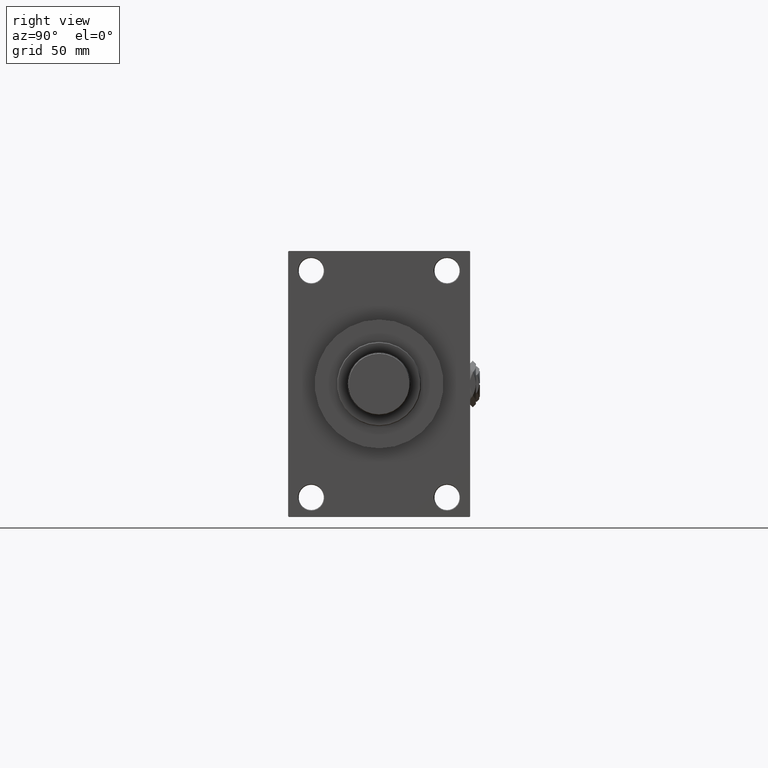
[diagram: clean part render]
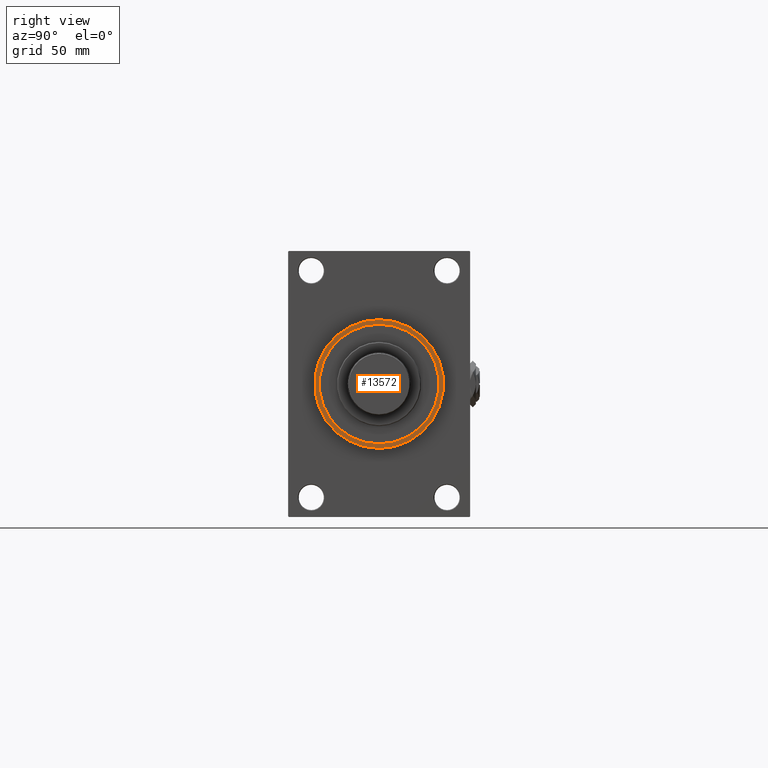
[diagram: same view with one face highlighted and labeled with its STEP entity id]
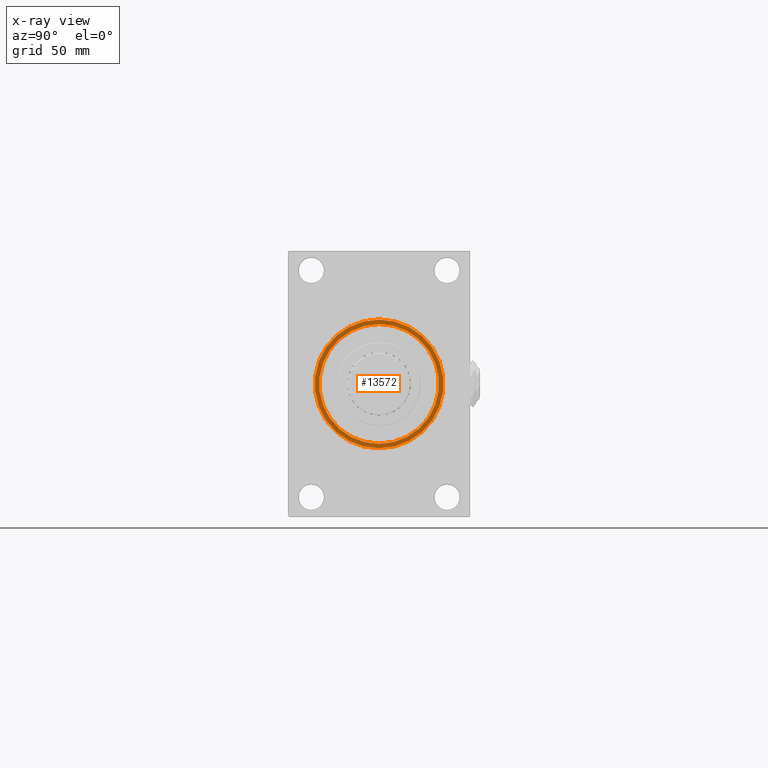
[diagram: x-ray of the same camera — body ghosted, the highlighted face saturated]
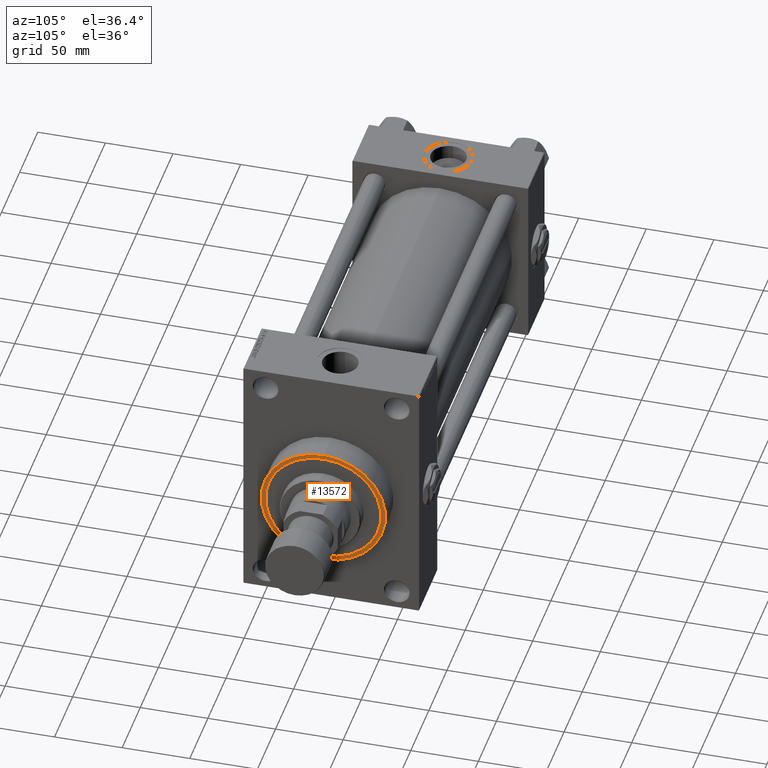
[diagram: same view with one face highlighted and labeled with its STEP entity id]
A machine part, right view. The second image highlights one B-rep face of the part: STEP entity #13572.
The next image is the same camera in x-ray: the body ghosted, the highlighted face saturated — about 0% of this face is hidden behind the body in this view.
A second angle (auxiliary view) of the same face is appended — the face is thin or edge-on in the first view.
In plain terms, the highlighted planar face has unit normal (1, 0, 0).
Its self-contained STEP definition (entity closure, byte-faithful):
#1721 = EDGE_CURVE ( 'NONE', #42578, #42935, #26000, .T. ) ;
#1923 = CIRCLE ( 'NONE', #42495, 42.75000000000000000 ) ;
#1949 = DIRECTION ( 'NONE',  ( 1.000000000000000000, 0.000000000000000000, 0.000000000000000000 ) ) ;
#3385 = EDGE_CURVE ( 'NONE', #42935, #42578, #26915, .T. ) ;
#7844 = EDGE_CURVE ( 'NONE', #21304, #18640, #1923, .T. ) ;
#8143 = AXIS2_PLACEMENT_3D ( 'NONE', #44148, #1949, #9306 ) ;
#8446 = DIRECTION ( 'NONE',  ( 0.000000000000000000, 0.000000000000000000, -1.000000000000000000 ) ) ;
#8537 = CARTESIAN_POINT ( 'NONE',  ( 368.0000000000000000, 0.000000000000000000, 0.000000000000000000 ) ) ;
#9306 = DIRECTION ( 'NONE',  ( 0.000000000000000000, 0.000000000000000000, -1.000000000000000000 ) ) ;
#13572 = ADVANCED_FACE ( 'NONE', ( #18440, #48947 ), #37262, .T. ) ;
#14109 = DIRECTION ( 'NONE',  ( 0.000000000000000000, 0.000000000000000000, -1.000000000000000000 ) ) ;
#16841 = ORIENTED_EDGE ( 'NONE', *, *, #7844, .F. ) ;
#17958 = EDGE_CURVE ( 'NONE', #18640, #21304, #23814, .T. ) ;
#18440 = FACE_BOUND ( 'NONE', #23606, .T. ) ;
#18640 = VERTEX_POINT ( 'NONE', #43853 ) ;
#18846 = CARTESIAN_POINT ( 'NONE',  ( 368.0000000000000000, 0.000000000000000000, 46.00000000000000000 ) ) ;
#21304 = VERTEX_POINT ( 'NONE', #49512 ) ;
#23606 = EDGE_LOOP ( 'NONE', ( #16841, #41477 ) ) ;
#23814 = CIRCLE ( 'NONE', #35205, 42.75000000000000000 ) ;
#24140 = DIRECTION ( 'NONE',  ( 0.000000000000000000, 0.000000000000000000, -1.000000000000000000 ) ) ;
#24384 = DIRECTION ( 'NONE',  ( 1.000000000000000000, 0.000000000000000000, 0.000000000000000000 ) ) ;
#24473 = AXIS2_PLACEMENT_3D ( 'NONE', #28201, #24384, #24140 ) ;
#26000 = CIRCLE ( 'NONE', #8143, 46.00000000000000000 ) ;
#26915 = CIRCLE ( 'NONE', #24473, 46.00000000000000000 ) ;
#28201 = CARTESIAN_POINT ( 'NONE',  ( 368.0000000000000000, 0.000000000000000000, 0.000000000000000000 ) ) ;
#31182 = DIRECTION ( 'NONE',  ( 0.000000000000000000, 0.000000000000000000, -1.000000000000000000 ) ) ;
#35205 = AXIS2_PLACEMENT_3D ( 'NONE', #40235, #36409, #8446 ) ;
#36409 = DIRECTION ( 'NONE',  ( 1.000000000000000000, 0.000000000000000000, 0.000000000000000000 ) ) ;
#37013 = DIRECTION ( 'NONE',  ( 1.000000000000000000, 0.000000000000000000, 0.000000000000000000 ) ) ;
#37262 = PLANE ( 'NONE',  #37573 ) ;
#37573 = AXIS2_PLACEMENT_3D ( 'NONE', #40838, #37013, #14109 ) ;
#38292 = CARTESIAN_POINT ( 'NONE',  ( 368.0000000000000000, 5.633375276077824704E-15, -46.00000000000000000 ) ) ;
#39570 = DIRECTION ( 'NONE',  ( 1.000000000000000000, 0.000000000000000000, 0.000000000000000000 ) ) ;
#40235 = CARTESIAN_POINT ( 'NONE',  ( 368.0000000000000000, 0.000000000000000000, 0.000000000000000000 ) ) ;
#40838 = CARTESIAN_POINT ( 'NONE',  ( 368.0000000000000000, 0.000000000000000000, 0.000000000000000000 ) ) ;
#41138 = ORIENTED_EDGE ( 'NONE', *, *, #1721, .T. ) ;
#41477 = ORIENTED_EDGE ( 'NONE', *, *, #17958, .F. ) ;
#42495 = AXIS2_PLACEMENT_3D ( 'NONE', #8537, #39570, #31182 ) ;
#42578 = VERTEX_POINT ( 'NONE', #18846 ) ;
#42654 = ORIENTED_EDGE ( 'NONE', *, *, #3385, .T. ) ;
#42935 = VERTEX_POINT ( 'NONE', #38292 ) ;
#43853 = CARTESIAN_POINT ( 'NONE',  ( 368.0000000000000000, 5.235365066354935472E-15, 42.75000000000000000 ) ) ;
#44148 = CARTESIAN_POINT ( 'NONE',  ( 368.0000000000000000, 0.000000000000000000, 0.000000000000000000 ) ) ;
#44171 = EDGE_LOOP ( 'NONE', ( #41138, #42654 ) ) ;
#48947 = FACE_OUTER_BOUND ( 'NONE', #44171, .T. ) ;
#49512 = CARTESIAN_POINT ( 'NONE',  ( 368.0000000000000000, 0.000000000000000000, -42.75000000000000000 ) ) ;